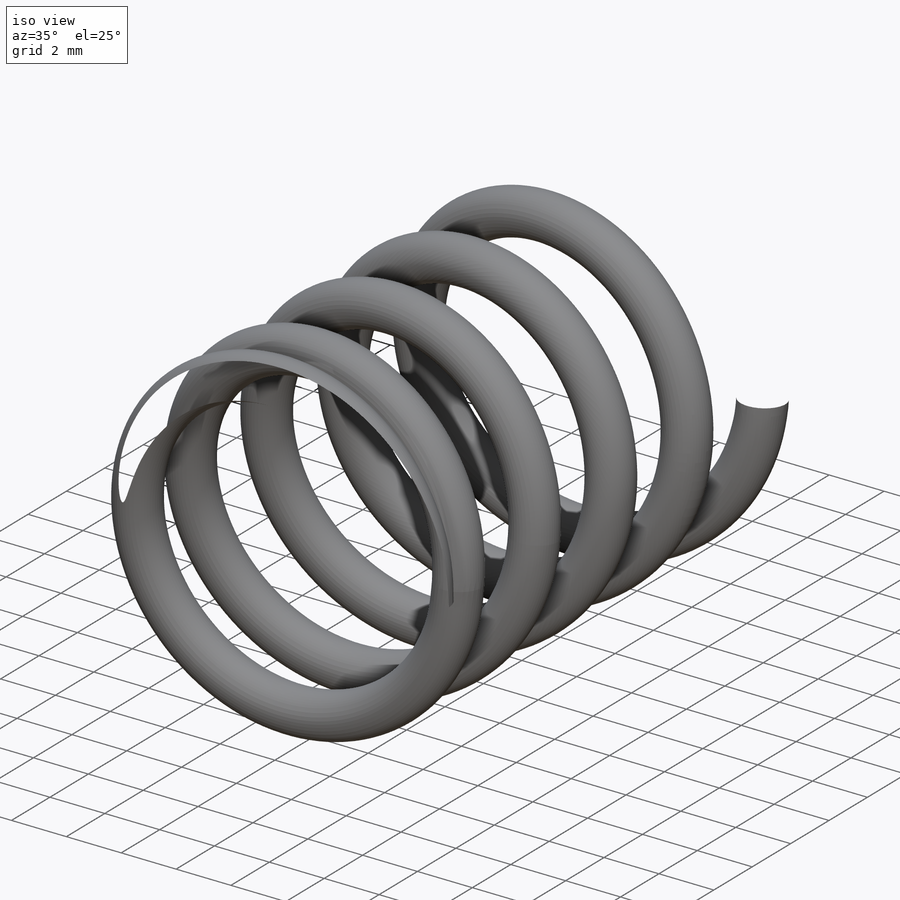
[diagram: iso view]
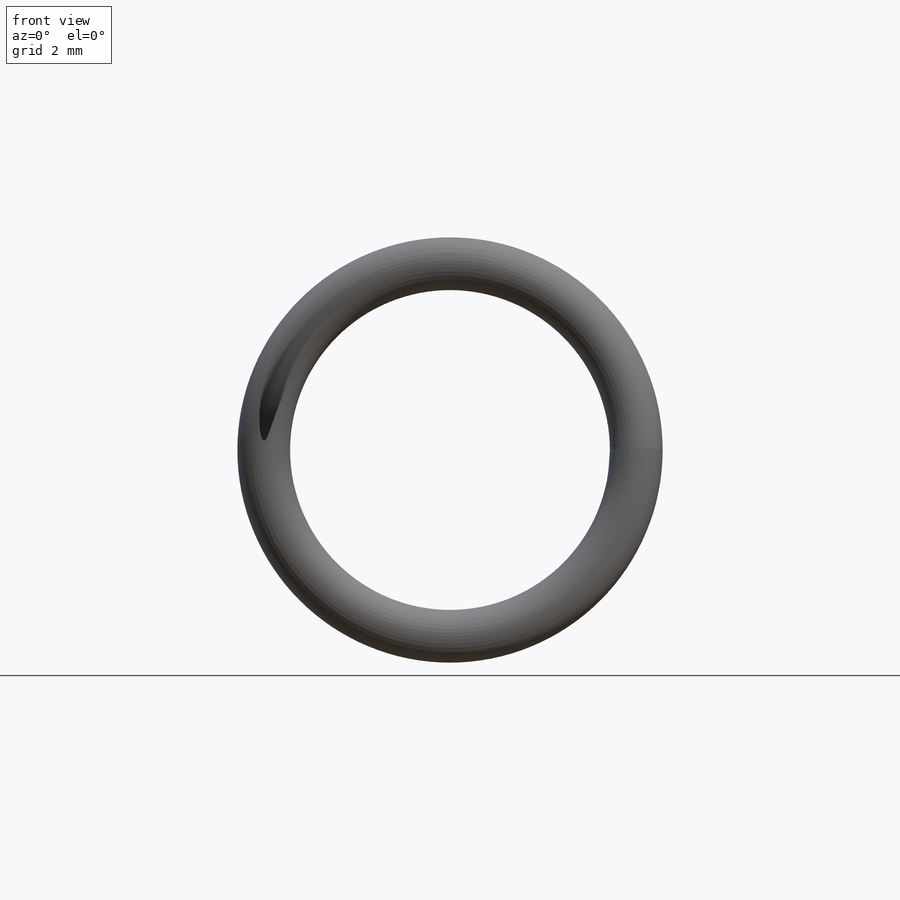
[diagram: front view]
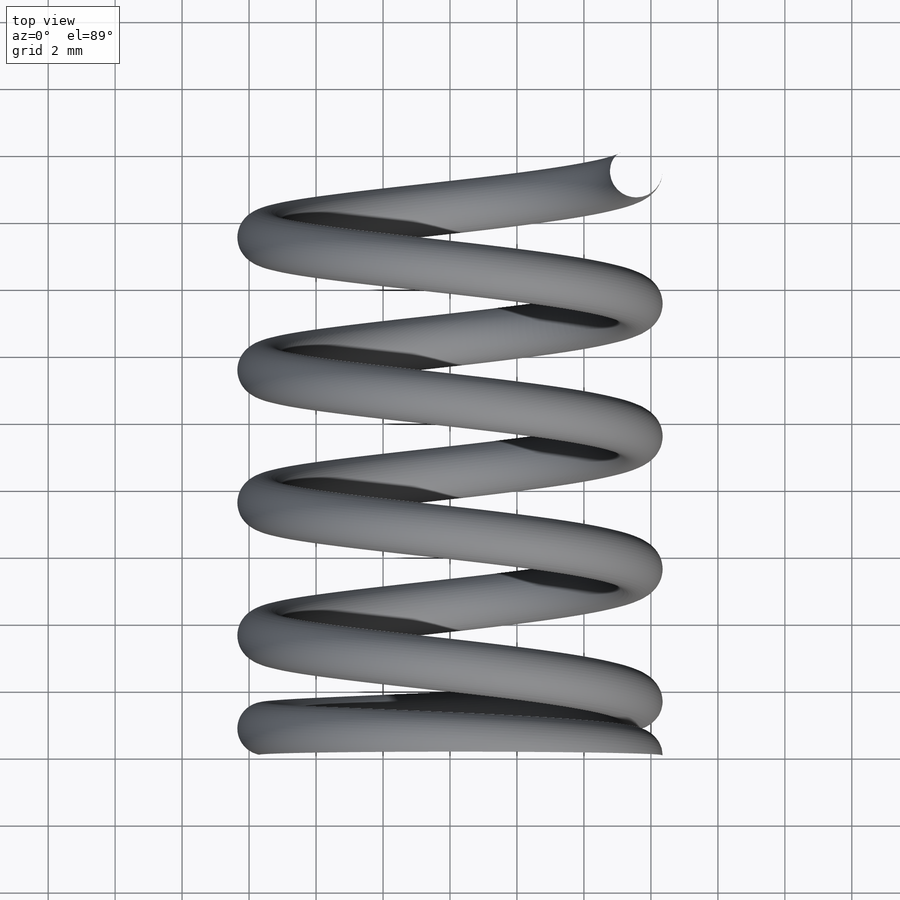
[diagram: top view]
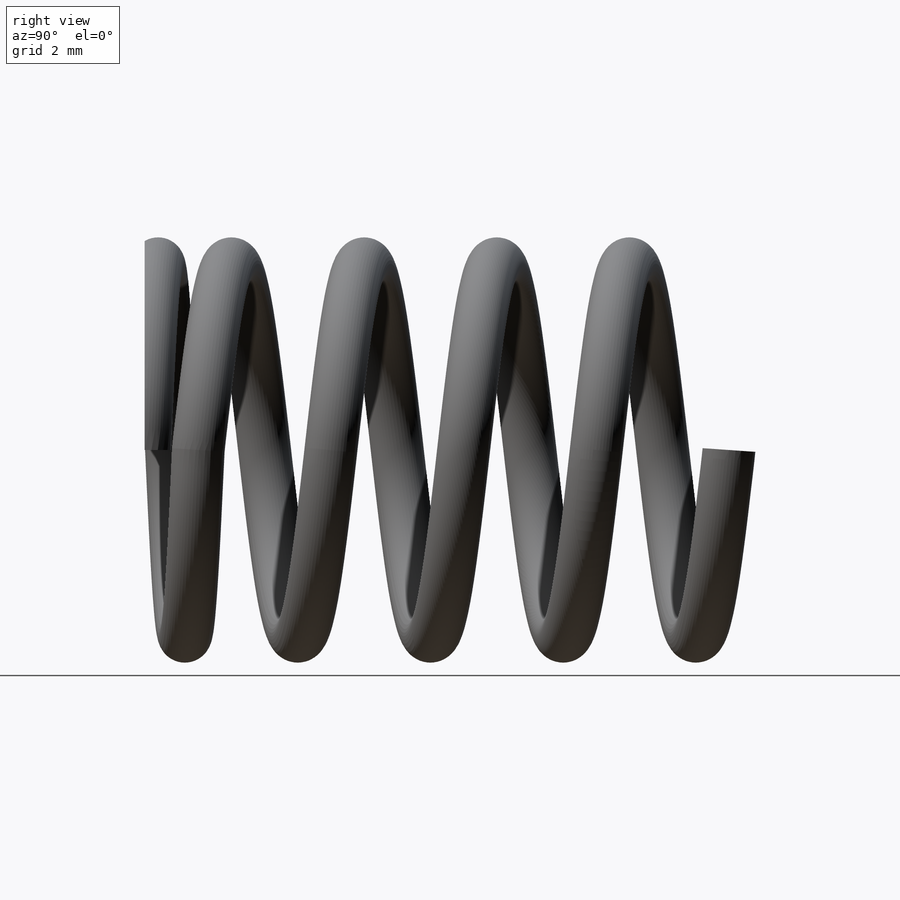
[diagram: right view]
SOLIDWORKS PART (.sldprt)
format: sldprt  version: not decoded by parser v0  size: 1,600,000 bytes
history: native  units: mm
features: sketch x6, helix x3, plane x2, material x1, sweep x1, cut_revolve x1 (+13 scaffold rows collapsed)
feature tree (27):
  scaffold x13  (default folders/planes/origin — collapsed)
  material  "Material <not specified>"
  sketch  "Sketch1"  dims[c1.Wire Dia=1.5748mm c1.D3=1.0668mm c1.D4=1.0668mm c1.D1=0.0254mm c1.Spring-OD=12.7mm c1.Overall Height=19.05mm c2.D3=15.8496mm c2.D4=1.6002mm]
  plane  "Plane1"
  plane  "Plane2"
  sketch  "Sketch2"
  helix  "Helix1"  Pitch=15.8496mm Body Coils=4
  sketch  "Sketch3"
  helix  "Helix2"  Pitch=1.6002mm
  sketch  "Sketch4"
  helix  "Helix3"  Pitch=1.6002mm
  sketch  "Sketch5"
  sweep  "Sweep1"
  sketch  "Sketch6"
  cut_revolve  "Cut-Revolve1"  Angle=360deg
decode coverage: 5 of 11 modeling features carry decoded parameters
note: suppression state not decoded; provenance and decode notes live in map.json
